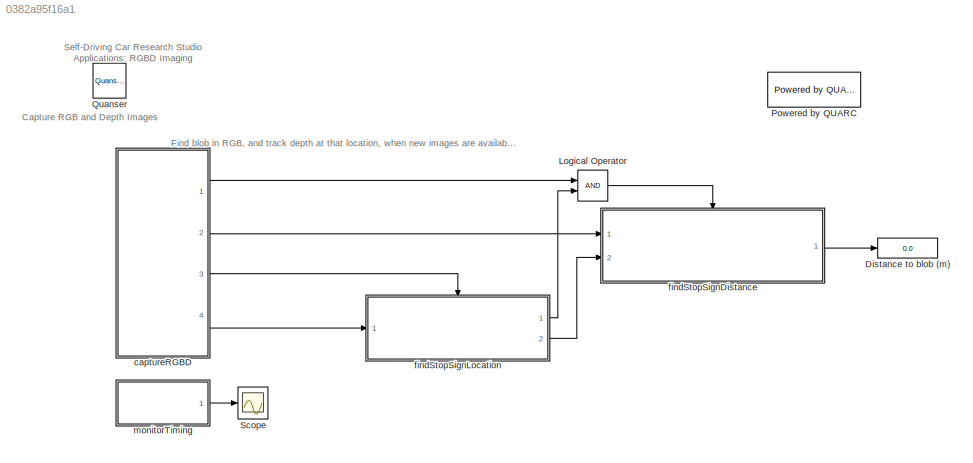
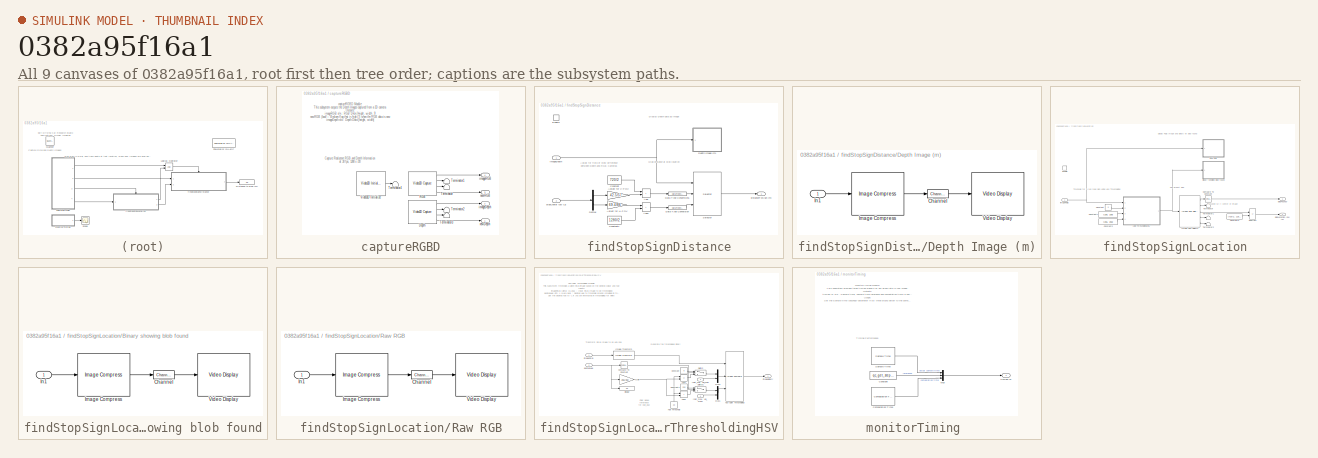
[diagram: thumbnail index - all 9 canvases of the model, root first then tree order]
MODEL slx_0382a95f16a1
KIND model
CONFIG AbsTol = auto
CONFIG EnableMultiTasking = on
CONFIG FixedStep = 1/30
CONFIG MaxStep = auto
CONFIG MinStep = auto
CONFIG RelTol = 1e-3
CONFIG SampleTimeConstraint = Unconstrained
CONFIG SolverName = ode2
CONFIG StartTime = 0.0
CONFIG StopTime = inf
BLOCK [Display] Distance to blob (m)
  Decimation = 1
  Ports = [1]
BLOCK [Logic] Logical Operator
  AllPortsSameDT = off
  OutDataTypeStr = boolean
  Ports = [2, 1]
BLOCK [Reference] Powered by QUARC  REF=quarc_library/Logos/Powered by QUARC
  Ports = []
  SourceBlock = quarc_library/Logos/Powered by QUARC
  SourceProductName = QUARC Targets
  SourceType = Powered by QUARC
BLOCK [Reference] Quanser  REF=quarc_library/Logos/Quanser
  Ports = []
  SourceBlock = quarc_library/Logos/Quanser
  SourceProductName = QUARC Targets
  SourceType = Powered by Quanser
BLOCK [Scope] Scope
  Floating = off
  NumInputPorts = 1
  Ports = [1]
  ScopeSpecificationString = Simulink.scopes.TimeScopeBlockCfg('CurrentConfiguration', extmgr.ConfigurationSet(extmgr.Configuration('Core','General UI',true),extmgr.Configuration('Core','Source UI',true),extmgr.Configuration('Sources','WiredSimulink',true),extmgr.Configuration('Visuals','Time Domain',true,'SerializedDisplays',{struct('MinYLimReal','0.00776','MaxYLimReal','0.05673','YLabelReal','','MinYLimMag','0.00776','MaxYL...<+1373ch>
BLOCK [SubSystem] captureRGBD
  Ports = [0, 4]
  RequestExecContextInheritance = off
BLOCK [Reference] captureRGBD/Depth  REF=quarc_library/Multimedia/Video3D Capture
  Ports = [0, 4]
  SourceBlock = quarc_library/Multimedia/Video3D Capture
  SourceProductName = QUARC Targets
  SourceType = Video3D Capture
  UserDataPersistent = on
BLOCK [Reference] captureRGBD/RGB  REF=quarc_library/Multimedia/Video3D Capture
  Ports = [0, 4]
  SourceBlock = quarc_library/Multimedia/Video3D Capture
  SourceProductName = QUARC Targets
  SourceType = Video3D Capture
  UserDataPersistent = on
BLOCK [Terminator] captureRGBD/Terminator
BLOCK [Terminator] captureRGBD/Terminator1
BLOCK [Terminator] captureRGBD/Terminator2
BLOCK [Terminator] captureRGBD/Terminator3
BLOCK [Terminator] captureRGBD/Terminator4
BLOCK [Reference] captureRGBD/Video3D Initialize  REF=quarc_library/Multimedia/Video3D Initialize
  Ports = [0, 1]
  SourceBlock = quarc_library/Multimedia/Video3D Initialize
  SourceProductName = QUARC Targets
  SourceType = Video3D Initialize
BLOCK [Outport] captureRGBD/imageDepth
  Port = 2
  VectorParamsAs1DForOutWhenUnconnected = off
BLOCK [Outport] captureRGBD/imageRGB
  Port = 4
  VectorParamsAs1DForOutWhenUnconnected = off
BLOCK [Outport] captureRGBD/newDepth
  VectorParamsAs1DForOutWhenUnconnected = off
BLOCK [Outport] captureRGBD/newRGB
  Port = 3
  VectorParamsAs1DForOutWhenUnconnected = off
BLOCK [SubSystem] findStopSignDistance
  Ports = [2, 1, 1]
  RequestExecContextInheritance = off
BLOCK [Sum] findStopSignDistance/Add
  IconShape = rectangular
  Ports = [2, 1]
BLOCK [Sum] findStopSignDistance/Add1
  IconShape = rectangular
  Ports = [2, 1]
BLOCK [Gain] findStopSignDistance/Adjust for H-FOV
  Gain = 69.4/86
BLOCK [Gain] findStopSignDistance/Adjust for V-FOV
  Gain = 42.5/57
  NameLocation = top
BLOCK [Constant] findStopSignDistance/Constant
  NameLocation = top
  Value = 720/2
BLOCK [Constant] findStopSignDistance/Constant1
  Value = 1280/2
BLOCK [DataTypeConversion] findStopSignDistance/Data Type Conversion
  OutDataTypeStr = int16
  RndMeth = Floor
  SaturateOnIntegerOverflow = off
BLOCK [DataTypeConversion] findStopSignDistance/Data Type Conversion1
  OutDataTypeStr = int16
  RndMeth = Floor
  SaturateOnIntegerOverflow = off
BLOCK [Demux] findStopSignDistance/Demux
  Outputs = 2
  Ports = [1, 2]
BLOCK [SubSystem] findStopSignDistance/Depth Image (m)
  CopyFcn = set_param(gcbh, 'UserData', gcb);\nset_param(gcbh, 'LinkStatus', 'none');
  LoadFcn = set_param(gcbh, 'UserData', gcb);
  NameChangeFcn = video_display_show([get_param(gcbh, 'UserData'), '/Video Display'], 'rename', [gcb, '/Video Display']);\nvideo_display_show([gcb, '/Video Display'], 'add', gcb);\nset_param(gcbh, 'UserData', gcb);  <repeated x3 — deduplicated; at blocks: Depth Image (m), Binary showing blob found, Raw RGB>
  NameLocation = top
  OpenFcn = video_display_show([gcb, '/Video Display'], 'show', gcb);
  Ports = [1]
  PreDeleteFcn = video_display_show([gcb, '/Video Display'], 'delete');
  RequestExecContextInheritance = off
  StartFcn = video_display_show([gcb, '/Video Display'], 'add', gcb);
  UndoDeleteFcn = set_param(gcbh, 'UserData', gcb);
BLOCK [Reference] findStopSignDistance/Depth Image (m)/Channel  REF=quarc_library/Signal Routing/Channel
  Ports = [1, 1]
  SourceBlock = quarc_library/Signal Routing/Channel
  SourceProductName = QUARC Targets
  SourceType = Channel
BLOCK [Reference] findStopSignDistance/Depth Image (m)/Image Compress  REF=quarc_library/Image Processing/Generic/Image Compress
  AttributesFormatString = (%<algorithm>)
  Ports = [1, 1]
  SourceBlock = quarc_library/Image Processing/Generic/Image Compress
  SourceProductName = QUARC Targets
  SourceType = Image Compress
BLOCK [Inport] findStopSignDistance/Depth Image (m)/In1
BLOCK [Reference] findStopSignDistance/Depth Image (m)/Video Display  REF=quarc_library/Multimedia/Video Display
  Ports = [1]
  SourceBlock = quarc_library/Multimedia/Video Display
  SourceProductName = QUARC Targets
  SourceType = Video Display
  Tag = RGBD_Imaging/findStopSignDistance/Depth Image (m)/Video Display
  UserDataPersistent = on
BLOCK [EnablePort] findStopSignDistance/Enable
  Ports = []
  PropagateVarSize = During execution
BLOCK [Selector] findStopSignDistance/Selector
  IndexOptions = Index vector (port),Index vector (port)
  Indices = [1 3],1
  InputPortWidth = 3
  NumberOfDimensions = 2
  OutputSizes = 1,1
  Ports = [3, 1]
BLOCK [Inport] findStopSignDistance/blobCenter (px) [2]
  Port = 2
BLOCK [Outport] findStopSignDistance/distanceToSign (m)
  VectorParamsAs1DForOutWhenUnconnected = off
BLOCK [Inport] findStopSignDistance/imageDepth
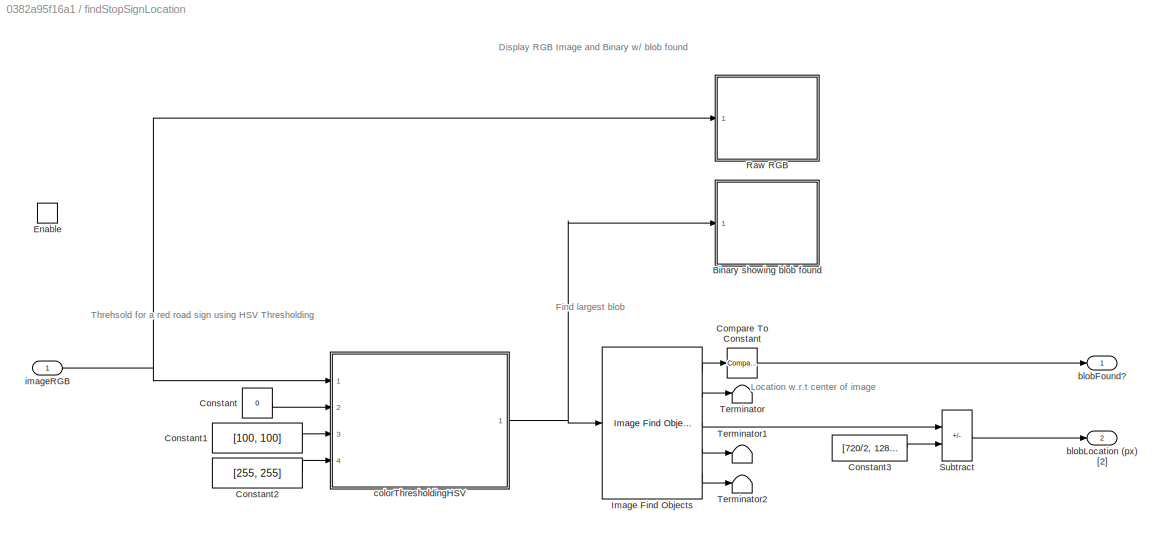
BLOCK [SubSystem] findStopSignLocation
  Ports = [1, 2, 1]
  RequestExecContextInheritance = off
BLOCK [SubSystem] findStopSignLocation/Binary showing blob found
  CopyFcn = set_param(gcbh, 'UserData', gcb);\nset_param(gcbh, 'LinkStatus', 'none');
  LoadFcn = set_param(gcbh, 'UserData', gcb);
  OpenFcn = video_display_show([gcb, '/Video Display'], 'show', gcb);
  Ports = [1]
  PreDeleteFcn = video_display_show([gcb, '/Video Display'], 'delete');
  RequestExecContextInheritance = off
  StartFcn = video_display_show([gcb, '/Video Display'], 'add', gcb);
  UndoDeleteFcn = set_param(gcbh, 'UserData', gcb);
BLOCK [Reference] findStopSignLocation/Binary showing blob found/Channel  REF=quarc_library/Signal Routing/Channel
  Ports = [1, 1]
  SourceBlock = quarc_library/Signal Routing/Channel
  SourceProductName = QUARC Targets
  SourceType = Channel
BLOCK [Reference] findStopSignLocation/Binary showing blob found/Image Compress  REF=quarc_library/Image Processing/Generic/Image Compress
  AttributesFormatString = (%<algorithm>)
  Ports = [1, 1]
  SourceBlock = quarc_library/Image Processing/Generic/Image Compress
  SourceProductName = QUARC Targets
  SourceType = Image Compress
BLOCK [Inport] findStopSignLocation/Binary showing blob found/In1
BLOCK [Reference] findStopSignLocation/Binary showing blob found/Video Display  REF=quarc_library/Multimedia/Video Display
  Ports = [1]
  SourceBlock = quarc_library/Multimedia/Video Display
  SourceProductName = QUARC Targets
  SourceType = Video Display
  Tag = RGBD_Imaging/findStopSignLocation/Binary showing blob found/Video Display
  UserDataPersistent = on
BLOCK [Reference] findStopSignLocation/Compare To Constant  REF=simulink/Logic and Bit
Operations/Compare
To Constant
  Ports = [1, 1]
  SourceBlock = simulink/Logic and Bit\nOperations/Compare\nTo Constant
  SourceProductBaseCode = SL
  SourceType = Compare To Constant
BLOCK [Constant] findStopSignLocation/Constant
  Value = 0
BLOCK [Constant] findStopSignLocation/Constant1
  Value = [100, 100]
BLOCK [Constant] findStopSignLocation/Constant2
  Value = [255, 255]
BLOCK [Constant] findStopSignLocation/Constant3
  Value = [720/2, 1280/2]
BLOCK [EnablePort] findStopSignLocation/Enable
  Ports = []
  PropagateVarSize = During execution
BLOCK [Reference] findStopSignLocation/Image Find Objects  REF=quarc_library/Image Processing/Generic/Image Find Objects
  Ports = [1, 5]
  SourceBlock = quarc_library/Image Processing/Generic/Image Find Objects
  SourceProductName = QUARC Targets
  SourceType = Image Find Objects
BLOCK [SubSystem] findStopSignLocation/Raw RGB
  CopyFcn = set_param(gcbh, 'UserData', gcb);\nset_param(gcbh, 'LinkStatus', 'none');
  LoadFcn = set_param(gcbh, 'UserData', gcb);
  OpenFcn = video_display_show([gcb, '/Video Display'], 'show', gcb);
  Ports = [1]
  PreDeleteFcn = video_display_show([gcb, '/Video Display'], 'delete');
  RequestExecContextInheritance = off
  StartFcn = video_display_show([gcb, '/Video Display'], 'add', gcb);
  UndoDeleteFcn = set_param(gcbh, 'UserData', gcb);
BLOCK [Reference] findStopSignLocation/Raw RGB/Channel  REF=quarc_library/Signal Routing/Channel
  Ports = [1, 1]
  SourceBlock = quarc_library/Signal Routing/Channel
  SourceProductName = QUARC Targets
  SourceType = Channel
BLOCK [Reference] findStopSignLocation/Raw RGB/Image Compress  REF=quarc_library/Image Processing/Generic/Image Compress
  AttributesFormatString = (%<algorithm>)
  Ports = [1, 1]
  SourceBlock = quarc_library/Image Processing/Generic/Image Compress
  SourceProductName = QUARC Targets
  SourceType = Image Compress
BLOCK [Inport] findStopSignLocation/Raw RGB/In1
BLOCK [Reference] findStopSignLocation/Raw RGB/Video Display  REF=quarc_library/Multimedia/Video Display
  Ports = [1]
  SourceBlock = quarc_library/Multimedia/Video Display
  SourceProductName = QUARC Targets
  SourceType = Video Display
  Tag = RGBD_Imaging/findStopSignLocation/Raw RGB/Video Display
  UserDataPersistent = on
BLOCK [Sum] findStopSignLocation/Subtract
  IconShape = rectangular
  Inputs = +-
  Ports = [2, 1]
BLOCK [Terminator] findStopSignLocation/Terminator
BLOCK [Terminator] findStopSignLocation/Terminator1
BLOCK [Terminator] findStopSignLocation/Terminator2
BLOCK [Outport] findStopSignLocation/blobFound?
  VectorParamsAs1DForOutWhenUnconnected = off
BLOCK [Outport] findStopSignLocation/blobLocation (px) [2]
  Port = 2
  VectorParamsAs1DForOutWhenUnconnected = off
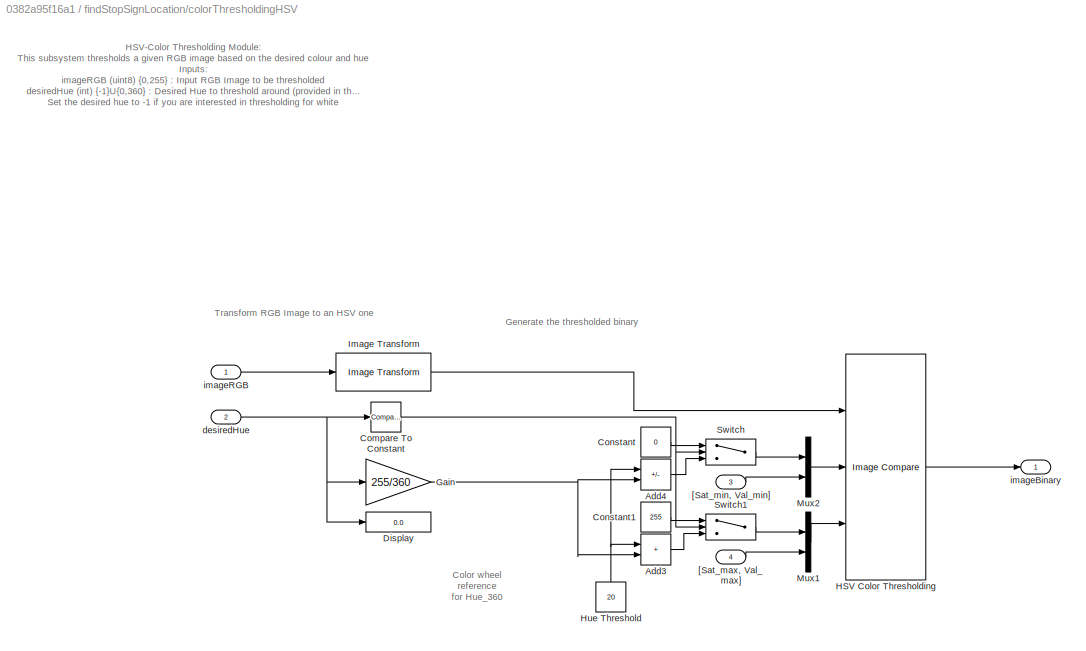
BLOCK [SubSystem] findStopSignLocation/colorThresholdingHSV
  Ports = [4, 1]
  RequestExecContextInheritance = off
BLOCK [Sum] findStopSignLocation/colorThresholdingHSV/Add3
  IconShape = rectangular
  NameLocation = top
  Ports = [2, 1]
BLOCK [Sum] findStopSignLocation/colorThresholdingHSV/Add4
  IconShape = rectangular
  Inputs = -+
  NameLocation = top
  Ports = [2, 1]
BLOCK [Reference] findStopSignLocation/colorThresholdingHSV/Compare To Constant  REF=simulink/Logic and Bit
Operations/Compare
To Constant
  Ports = [1, 1]
  SourceBlock = simulink/Logic and Bit\nOperations/Compare\nTo Constant
  SourceProductBaseCode = SL
  SourceType = Compare To Constant
BLOCK [Constant] findStopSignLocation/colorThresholdingHSV/Constant
  Value = 0
BLOCK [Constant] findStopSignLocation/colorThresholdingHSV/Constant1
  Value = 255
BLOCK [Display] findStopSignLocation/colorThresholdingHSV/Display
  Ports = [1]
BLOCK [Gain] findStopSignLocation/colorThresholdingHSV/Gain
  Gain = 255/360
BLOCK [Reference] findStopSignLocation/colorThresholdingHSV/HSV Color Thresholding  REF=quarc_library/Image Processing/Generic/Image Compare
  Ports = [3, 1]
  SourceBlock = quarc_library/Image Processing/Generic/Image Compare
  SourceProductName = QUARC Targets
  SourceType = Image Compare
BLOCK [Constant] findStopSignLocation/colorThresholdingHSV/Hue Threshold
  NameLocation = right
  Value = 20
BLOCK [Reference] findStopSignLocation/colorThresholdingHSV/Image Transform  REF=quarc_library/Image Processing/Generic/Image Transform
  AttributesFormatString = (%<algorithm>)
  NameLocation = top
  Ports = [1, 1]
  SourceBlock = quarc_library/Image Processing/Generic/Image Transform
  SourceProductName = QUARC Targets
  SourceType = Image Transform
BLOCK [Mux] findStopSignLocation/colorThresholdingHSV/Mux1
  DisplayOption = bar
  Inputs = 2
  Ports = [2, 1]
BLOCK [Mux] findStopSignLocation/colorThresholdingHSV/Mux2
  DisplayOption = bar
  Inputs = 2
  Ports = [2, 1]
BLOCK [Switch] findStopSignLocation/colorThresholdingHSV/Switch
  Criteria = u2 > Threshold
  InputSameDT = off
  SaturateOnIntegerOverflow = off
BLOCK [Switch] findStopSignLocation/colorThresholdingHSV/Switch1
  Criteria = u2 > Threshold
  InputSameDT = off
  SaturateOnIntegerOverflow = off
BLOCK [Inport] findStopSignLocation/colorThresholdingHSV/[Sat_max, Val_max]
  Port = 4
BLOCK [Inport] findStopSignLocation/colorThresholdingHSV/[Sat_min, Val_min]
  Port = 3
BLOCK [Inport] findStopSignLocation/colorThresholdingHSV/desiredHue
  Port = 2
BLOCK [Outport] findStopSignLocation/colorThresholdingHSV/imageBinary
  VectorParamsAs1DForOutWhenUnconnected = off
BLOCK [Inport] findStopSignLocation/colorThresholdingHSV/imageRGB
BLOCK [Inport] findStopSignLocation/imageRGB
BLOCK [SubSystem] monitorTiming 
  Ports = [0, 1]
  RequestExecContextInheritance = off
BLOCK [Reference] monitorTiming /Computation Time  REF=quarc_library/Sources/Time/Computation Time
  Ports = [0, 1]
  SourceBlock = quarc_library/Sources/Time/Computation Time
  SourceProductName = QUARC Targets
  SourceType = Computation Time
BLOCK [Constant] monitorTiming /Constant
  Value = qc_get_step_size
BLOCK [Mux] monitorTiming /Mux
  DisplayOption = bar
  Inputs = 3
  Ports = [3, 1]
BLOCK [Reference] monitorTiming /Sample Time  REF=quarc_library/Sources/Time/Sample Time
  Ports = [0, 1]
  Priority = -99
  SourceBlock = quarc_library/Sources/Time/Sample Time
  SourceProductName = QUARC Targets
  SourceType = Sample Time
BLOCK [Outport] monitorTiming /timing (s)
  VectorParamsAs1DForOutWhenUnconnected = off
ANNOTATION (root): Self-Driving Car Research Studio Applications: RGBD Imaging
ANNOTATION (root): Capture RGB and Depth Images
ANNOTATION (root): Find blob in RGB, and track depth at that location, when new images are available
ANNOTATION captureRGBD: captureRGBD Module: This subsystem outputs the Depth Images captured from a 3D camera Outputs: imageRGB n/a : RGB Data [height, width, 3] newRGB (bool) : Boolean flag that is high (1) when the RGB data is new imageDepth n/a : Depth Data [height, width] newDepth (bool) : Boolean flag that is high (1) when the depth data is new Usage: Connect the new ports to the Enable/Trigger port of Enabled/Trigg...<+65ch>
ANNOTATION captureRGBD: Capture Realsense RGB and Depth Information at 30 fps, 1280 x 720
ANNOTATION findStopSignDistance: Adjust for field of view difference between Depth and RGB Cameras
ANNOTATION findStopSignDistance: Display Depth data as image
ANNOTATION findStopSignDistance: Grab distance at blob location
ANNOTATION findStopSignLocation: Display RGB Image and Binary w/ blob found
ANNOTATION findStopSignLocation: Find largest blob
ANNOTATION findStopSignLocation: Location w.r.t center of image
ANNOTATION findStopSignLocation: Threhsold for a red road sign using HSV Thresholding
ANNOTATION findStopSignLocation/colorThresholdingHSV: HSV-Color Thresholding Module: This subsystem thresholds a given RGB image based on the desired colour and hue Inputs: imageRGB (uint8) {0,255} : Input RGB Image to be thresholded desiredHue (int) {-1}U{0,360} : Desired Hue to threshold around (provided in the 0-360 degree range, see the color wheel for hue selection) Set the desired hue to -1 if you are interested in thresholding for white [Sat_m...<+731ch>
ANNOTATION findStopSignLocation/colorThresholdingHSV: Color wheel reference for Hue_360
ANNOTATION findStopSignLocation/colorThresholdingHSV: Generate the thresholded binary
ANNOTATION findStopSignLocation/colorThresholdingHSV: Transform RGB Image to an HSV one
ANNOTATION monitorTiming : monitorTiming Module: This subsystem provides three timing signals for any given rate in your model. Outputs: timing (s) n/a : Sample time, sample time reference and computation time in seconds. Usage: Set the 'Sample time (seconds)' parameter in all three blocks below to the same number. This will provide the actual sample time at each time step, the reference sample time that is being targeted a...<+103ch>
ANNOTATION monitorTiming : Timing Performance
LINE Logical Operator:1 -> findStopSignDistance:enable
LINE captureRGBD/Depth:1 -> captureRGBD/imageDepth:1
LINE captureRGBD/Depth:2 -> captureRGBD/Terminator2:1
LINE captureRGBD/Depth:3 -> captureRGBD/Terminator3:1
LINE captureRGBD/Depth:4 -> captureRGBD/newDepth:1
LINE captureRGBD/RGB:1 -> captureRGBD/imageRGB:1
LINE captureRGBD/RGB:2 -> captureRGBD/Terminator1:1
LINE captureRGBD/RGB:3 -> captureRGBD/Terminator:1
LINE captureRGBD/RGB:4 -> captureRGBD/newRGB:1
LINE captureRGBD/Video3D Initialize:1 -> captureRGBD/Terminator4:1
LINE captureRGBD:1 -> Logical Operator:1
LINE captureRGBD:2 -> findStopSignDistance:1
LINE captureRGBD:3 -> findStopSignLocation:enable
LINE captureRGBD:4 -> findStopSignLocation:1
LINE findStopSignDistance/Add1:1 -> findStopSignDistance/Data Type Conversion:1
LINE findStopSignDistance/Add:1 -> findStopSignDistance/Data Type Conversion1:1
LINE findStopSignDistance/Adjust for H-FOV:1 -> findStopSignDistance/Add1:1
LINE findStopSignDistance/Adjust for V-FOV:1 -> findStopSignDistance/Add:2
LINE findStopSignDistance/Constant1:1 -> findStopSignDistance/Add1:2
LINE findStopSignDistance/Constant:1 -> findStopSignDistance/Add:1
LINE findStopSignDistance/Data Type Conversion1:1 -> findStopSignDistance/Selector:2
LINE findStopSignDistance/Data Type Conversion:1 -> findStopSignDistance/Selector:3
LINE findStopSignDistance/Demux:1 -> findStopSignDistance/Adjust for V-FOV:1
LINE findStopSignDistance/Demux:2 -> findStopSignDistance/Adjust for H-FOV:1
LINE findStopSignDistance/Selector:1 -> findStopSignDistance/distanceToSign (m):1
LINE findStopSignDistance/blobCenter (px) [2]:1 -> findStopSignDistance/Demux:1
NET findStopSignDistance/imageDepth:1 -> findStopSignDistance/Depth Image (m):1, findStopSignDistance/Selector:1
LINE findStopSignDistance:1 -> Distance to blob (m):1
LINE findStopSignLocation/Compare To Constant:1 -> findStopSignLocation/blobFound?:1
LINE findStopSignLocation/Constant1:1 -> findStopSignLocation/colorThresholdingHSV:3
LINE findStopSignLocation/Constant2:1 -> findStopSignLocation/colorThresholdingHSV:4
LINE findStopSignLocation/Constant3:1 -> findStopSignLocation/Subtract:2
LINE findStopSignLocation/Constant:1 -> findStopSignLocation/colorThresholdingHSV:2
LINE findStopSignLocation/Image Find Objects:1 -> findStopSignLocation/Compare To Constant:1
LINE findStopSignLocation/Image Find Objects:2 -> findStopSignLocation/Terminator:1
LINE findStopSignLocation/Image Find Objects:3 -> findStopSignLocation/Subtract:1
LINE findStopSignLocation/Image Find Objects:4 -> findStopSignLocation/Terminator1:1
LINE findStopSignLocation/Image Find Objects:5 -> findStopSignLocation/Terminator2:1
LINE findStopSignLocation/Subtract:1 -> findStopSignLocation/blobLocation (px) [2]:1
LINE findStopSignLocation/colorThresholdingHSV/Add3:1 -> findStopSignLocation/colorThresholdingHSV/Switch1:3
LINE findStopSignLocation/colorThresholdingHSV/Add4:1 -> findStopSignLocation/colorThresholdingHSV/Switch:3
NET findStopSignLocation/colorThresholdingHSV/Compare To Constant:1 -> findStopSignLocation/colorThresholdingHSV/Switch1:2, findStopSignLocation/colorThresholdingHSV/Switch:2
LINE findStopSignLocation/colorThresholdingHSV/Constant1:1 -> findStopSignLocation/colorThresholdingHSV/Switch1:1
LINE findStopSignLocation/colorThresholdingHSV/Constant:1 -> findStopSignLocation/colorThresholdingHSV/Switch:1
NET findStopSignLocation/colorThresholdingHSV/Gain:1 -> findStopSignLocation/colorThresholdingHSV/Add3:2, findStopSignLocation/colorThresholdingHSV/Add4:2
LINE findStopSignLocation/colorThresholdingHSV/HSV Color Thresholding:1 -> findStopSignLocation/colorThresholdingHSV/imageBinary:1
NET findStopSignLocation/colorThresholdingHSV/Hue Threshold:1 -> findStopSignLocation/colorThresholdingHSV/Add3:1, findStopSignLocation/colorThresholdingHSV/Add4:1
LINE findStopSignLocation/colorThresholdingHSV/Image Transform:1 -> findStopSignLocation/colorThresholdingHSV/HSV Color Thresholding:1
LINE findStopSignLocation/colorThresholdingHSV/Mux1:1 -> findStopSignLocation/colorThresholdingHSV/HSV Color Thresholding:3
LINE findStopSignLocation/colorThresholdingHSV/Mux2:1 -> findStopSignLocation/colorThresholdingHSV/HSV Color Thresholding:2
LINE findStopSignLocation/colorThresholdingHSV/Switch1:1 -> findStopSignLocation/colorThresholdingHSV/Mux1:1
LINE findStopSignLocation/colorThresholdingHSV/Switch:1 -> findStopSignLocation/colorThresholdingHSV/Mux2:1
LINE findStopSignLocation/colorThresholdingHSV/[Sat_max, Val_max]:1 -> findStopSignLocation/colorThresholdingHSV/Mux1:2
LINE findStopSignLocation/colorThresholdingHSV/[Sat_min, Val_min]:1 -> findStopSignLocation/colorThresholdingHSV/Mux2:2
NET findStopSignLocation/colorThresholdingHSV/desiredHue:1 -> findStopSignLocation/colorThresholdingHSV/Compare To Constant:1, findStopSignLocation/colorThresholdingHSV/Display:1, findStopSignLocation/colorThresholdingHSV/Gain:1
LINE findStopSignLocation/colorThresholdingHSV/imageRGB:1 -> findStopSignLocation/colorThresholdingHSV/Image Transform:1
NET findStopSignLocation/colorThresholdingHSV:1 -> findStopSignLocation/Binary showing blob found:1, findStopSignLocation/Image Find Objects:1
NET findStopSignLocation/imageRGB:1 -> findStopSignLocation/Raw RGB:1, findStopSignLocation/colorThresholdingHSV:1
LINE findStopSignLocation:1 -> Logical Operator:2
LINE findStopSignLocation:2 -> findStopSignDistance:2
LINE monitorTiming /Computation Time:1 -> monitorTiming /Mux:3
LINE monitorTiming /Constant:1 -> monitorTiming /Mux:2
LINE monitorTiming /Mux:1 -> monitorTiming /timing (s):1
LINE monitorTiming /Sample Time:1 -> monitorTiming /Mux:1
LINE monitorTiming :1 -> Scope:1
note: NET lines group one-source signal fan-out (src -> all destinations, sorted); 1:1 wires keep LINE
